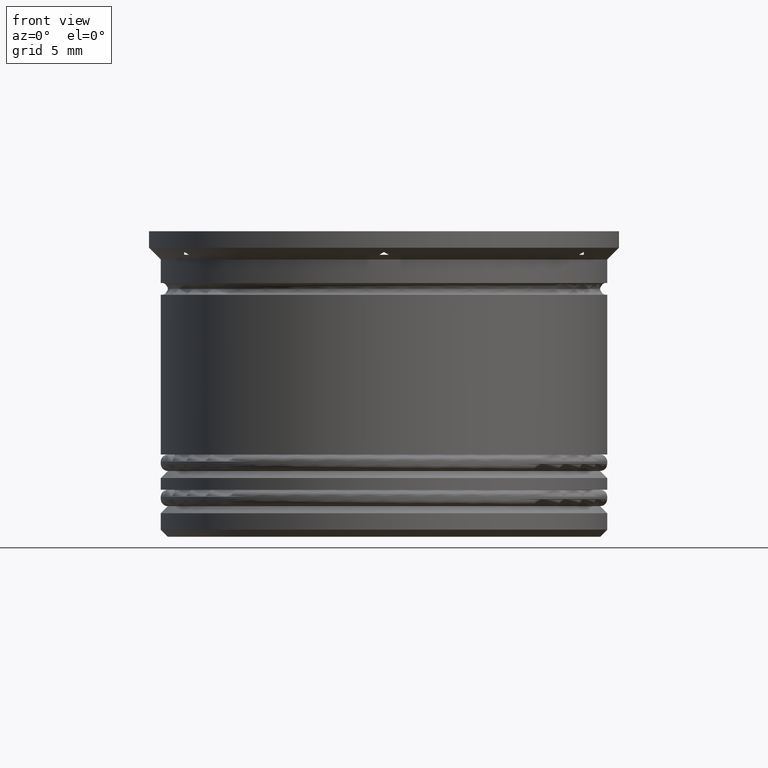
[diagram: clean part render]
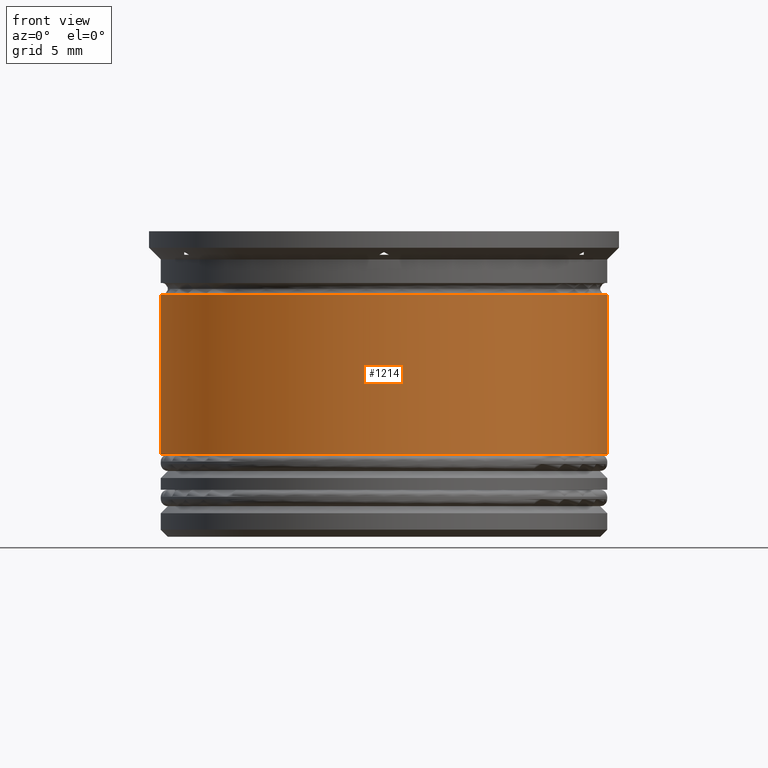
[diagram: same view with one face highlighted and labeled with its STEP entity id]
A machine part, front view. The second image highlights one B-rep face of the part: STEP entity #1214.
In plain terms, the highlighted cylindrical surface (partial cylindrical patch) has radius 9.5 mm, axis along (-0, -0, 1).
Its self-contained STEP definition (entity closure, byte-faithful):
#107 = DIRECTION ( 'NONE',  ( 1.000000000000000000, 0.000000000000000000, 0.000000000000000000 ) ) ;
#128 = CARTESIAN_POINT ( 'NONE',  ( 0.000000000000000000, 0.000000000000000000, -2.700000000000000178 ) ) ;
#206 = VERTEX_POINT ( 'NONE', #1175 ) ;
#268 = LINE ( 'NONE', #1448, #352 ) ;
#284 = CARTESIAN_POINT ( 'NONE',  ( 0.000000000000000000, 0.000000000000000000, 0.000000000000000000 ) ) ;
#318 = EDGE_CURVE ( 'NONE', #2170, #206, #920, .T. ) ;
#352 = VECTOR ( 'NONE', #772, 1000.000000000000000 ) ;
#366 = ORIENTED_EDGE ( 'NONE', *, *, #1059, .T. ) ;
#391 = EDGE_CURVE ( 'NONE', #206, #1263, #813, .T. ) ;
#408 = CARTESIAN_POINT ( 'NONE',  ( -9.500000000000000000, 1.163414459189985485E-15, 0.000000000000000000 ) ) ;
#415 = DIRECTION ( 'NONE',  ( -0.000000000000000000, -0.000000000000000000, 1.000000000000000000 ) ) ;
#419 = CARTESIAN_POINT ( 'NONE',  ( 9.500000000000001776, 0.000000000000000000, -9.500000000000000000 ) ) ;
#453 = DIRECTION ( 'NONE',  ( 1.000000000000000000, 0.000000000000000000, 0.000000000000000000 ) ) ;
#500 = VECTOR ( 'NONE', #1105, 1000.000000000000000 ) ;
#552 = CARTESIAN_POINT ( 'NONE',  ( -9.500000000000001776, 1.163414459189985682E-15, -9.500000000000000000 ) ) ;
#661 = AXIS2_PLACEMENT_3D ( 'NONE', #128, #1126, #453 ) ;
#772 = DIRECTION ( 'NONE',  ( -0.000000000000000000, -0.000000000000000000, 1.000000000000000000 ) ) ;
#774 = EDGE_CURVE ( 'NONE', #1573, #1263, #268, .T. ) ;
#782 = CYLINDRICAL_SURFACE ( 'NONE', #923, 9.500000000000000000 ) ;
#802 = ORIENTED_EDGE ( 'NONE', *, *, #391, .F. ) ;
#813 = CIRCLE ( 'NONE', #661, 9.499999999999998224 ) ;
#920 = LINE ( 'NONE', #408, #500 ) ;
#923 = AXIS2_PLACEMENT_3D ( 'NONE', #284, #415, #107 ) ;
#940 = FACE_OUTER_BOUND ( 'NONE', #1690, .T. ) ;
#1059 = EDGE_CURVE ( 'NONE', #2170, #1573, #1499, .T. ) ;
#1105 = DIRECTION ( 'NONE',  ( -0.000000000000000000, -0.000000000000000000, 1.000000000000000000 ) ) ;
#1114 = CARTESIAN_POINT ( 'NONE',  ( 0.000000000000000000, 0.000000000000000000, -9.500000000000000000 ) ) ;
#1126 = DIRECTION ( 'NONE',  ( -0.000000000000000000, -0.000000000000000000, 1.000000000000000000 ) ) ;
#1175 = CARTESIAN_POINT ( 'NONE',  ( -9.499999999999998224, 1.163414459189985485E-15, -2.700000000000000178 ) ) ;
#1214 = ADVANCED_FACE ( 'NONE', ( #940 ), #782, .T. ) ;
#1263 = VERTEX_POINT ( 'NONE', #1615 ) ;
#1303 = DIRECTION ( 'NONE',  ( -0.000000000000000000, -0.000000000000000000, 1.000000000000000000 ) ) ;
#1448 = CARTESIAN_POINT ( 'NONE',  ( 9.500000000000000000, 0.000000000000000000, 0.000000000000000000 ) ) ;
#1464 = DIRECTION ( 'NONE',  ( 1.000000000000000000, 0.000000000000000000, 0.000000000000000000 ) ) ;
#1499 = CIRCLE ( 'NONE', #1962, 9.500000000000001776 ) ;
#1573 = VERTEX_POINT ( 'NONE', #419 ) ;
#1615 = CARTESIAN_POINT ( 'NONE',  ( 9.499999999999998224, 0.000000000000000000, -2.700000000000000178 ) ) ;
#1690 = EDGE_LOOP ( 'NONE', ( #1843, #366, #1770, #802 ) ) ;
#1770 = ORIENTED_EDGE ( 'NONE', *, *, #774, .T. ) ;
#1843 = ORIENTED_EDGE ( 'NONE', *, *, #318, .F. ) ;
#1962 = AXIS2_PLACEMENT_3D ( 'NONE', #1114, #1303, #1464 ) ;
#2170 = VERTEX_POINT ( 'NONE', #552 ) ;